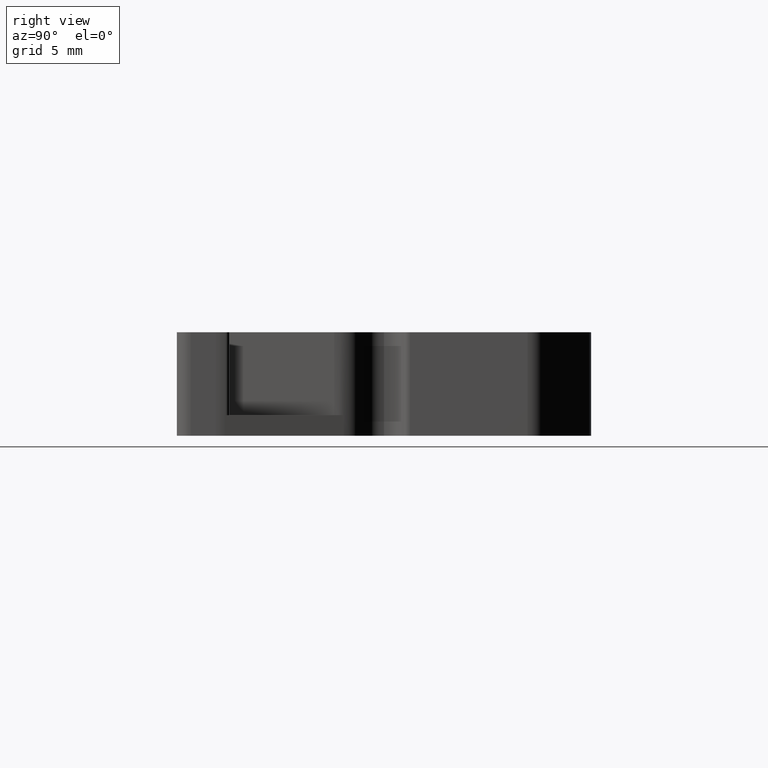
[diagram: clean part render]
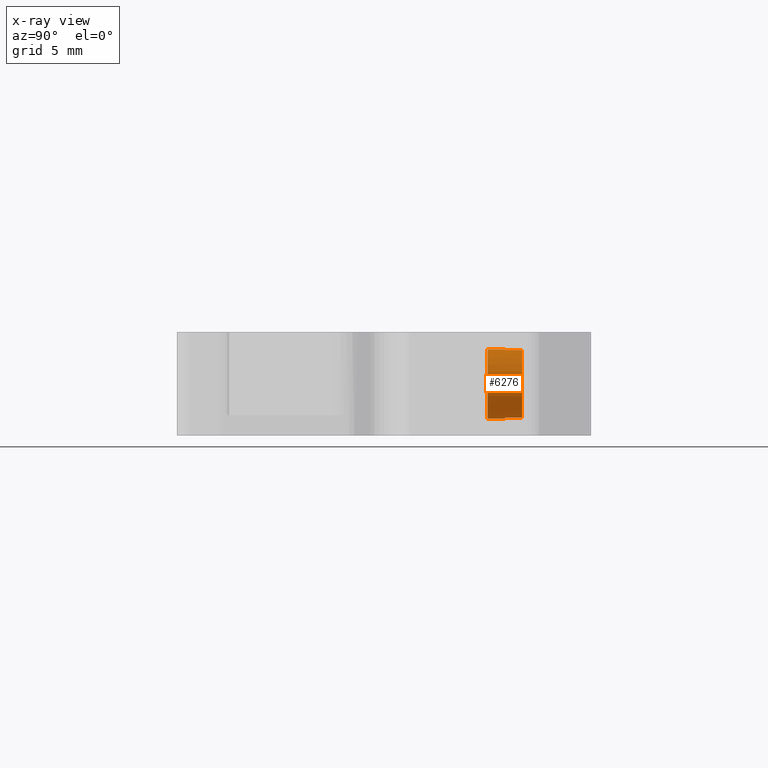
[diagram: x-ray — body ghosted, one internal face saturated and labeled with its STEP entity id]
A machine part, right view, then the same camera in x-ray: the body is ghosted and one INTERNAL B-rep face — a face not visible from any outside direction — is saturated and labeled: STEP entity #6276.
In plain terms, the highlighted cylindrical surface (edge-blend (fillet) strip) has radius 2.5 mm, axis along (-0, -1, -0).
Its self-contained STEP definition (entity closure, byte-faithful):
#83 = EDGE_LOOP ( 'NONE', ( #1193, #1153, #1237, #1200, #1156, #1204, #1145, #1187 ) ) ;
#788 = VERTEX_POINT ( 'NONE', #1314 ) ;
#789 = VERTEX_POINT ( 'NONE', #1349 ) ;
#793 = VERTEX_POINT ( 'NONE', #1322 ) ;
#797 = VERTEX_POINT ( 'NONE', #1350 ) ;
#800 = VERTEX_POINT ( 'NONE', #1338 ) ;
#805 = VERTEX_POINT ( 'NONE', #1329 ) ;
#806 = VERTEX_POINT ( 'NONE', #1356 ) ;
#814 = VERTEX_POINT ( 'NONE', #1359 ) ;
#1145 = ORIENTED_EDGE ( 'NONE', *, *, #3273, .T. ) ;
#1153 = ORIENTED_EDGE ( 'NONE', *, *, #3294, .T. ) ;
#1156 = ORIENTED_EDGE ( 'NONE', *, *, #3284, .F. ) ;
#1187 = ORIENTED_EDGE ( 'NONE', *, *, #3279, .F. ) ;
#1193 = ORIENTED_EDGE ( 'NONE', *, *, #3297, .F. ) ;
#1200 = ORIENTED_EDGE ( 'NONE', *, *, #3288, .F. ) ;
#1204 = ORIENTED_EDGE ( 'NONE', *, *, #3267, .F. ) ;
#1237 = ORIENTED_EDGE ( 'NONE', *, *, #3270, .F. ) ;
#1314 = CARTESIAN_POINT ( 'NONE',  ( 20.92415554633813500, -8.887247075295563900, 6.249999999999959100 ) ) ;
#1322 = CARTESIAN_POINT ( 'NONE',  ( 21.42415554633813500, -8.887247075295563900, 1.300510257216773500 ) ) ;
#1329 = CARTESIAN_POINT ( 'NONE',  ( 20.92415554633813500, -10.13724707529556700, 1.249999999999950700 ) ) ;
#1338 = CARTESIAN_POINT ( 'NONE',  ( 21.42415554633813500, -7.637247075295564800, 6.199489742783136100 ) ) ;
#1349 = CARTESIAN_POINT ( 'NONE',  ( 21.42415554633813500, -8.887247075295563900, 6.199489742783136100 ) ) ;
#1350 = CARTESIAN_POINT ( 'NONE',  ( 20.92415554633813500, -10.13724707529556700, 6.249999999999959100 ) ) ;
#1356 = CARTESIAN_POINT ( 'NONE',  ( 20.92415554633813500, -8.887247075295563900, 1.249999999999950700 ) ) ;
#1359 = CARTESIAN_POINT ( 'NONE',  ( 21.42415554633813500, -7.637247075295564800, 1.300510257216773500 ) ) ;
#2347 = CIRCLE ( 'NONE', #2349, 2.500000000000004000 ) ;
#2349 = AXIS2_PLACEMENT_3D ( 'NONE', #4329, #4306, #4307 ) ;
#2353 = AXIS2_PLACEMENT_3D ( 'NONE', #4292, #4296, #4269 ) ;
#2359 = CIRCLE ( 'NONE', #2353, 2.500000000000004000 ) ;
#2368 = CIRCLE ( 'NONE', #2371, 2.500000000000004000 ) ;
#2371 = AXIS2_PLACEMENT_3D ( 'NONE', #4310, #4336, #4338 ) ;
#2372 = VECTOR ( 'NONE', #4303, 1000.000000000000000 ) ;
#2379 = VECTOR ( 'NONE', #4266, 1000.000000000000000 ) ;
#2422 = VECTOR ( 'NONE', #4369, 1000.000000000000000 ) ;
#2427 = CIRCLE ( 'NONE', #2428, 2.500000000000004000 ) ;
#2428 = AXIS2_PLACEMENT_3D ( 'NONE', #4351, #4372, #4345 ) ;
#2434 = VECTOR ( 'NONE', #4343, 1000.000000000000000 ) ;
#3180 = AXIS2_PLACEMENT_3D ( 'NONE', #5973, #5977, #6009 ) ;
#3267 = EDGE_CURVE ( 'NONE', #814, #793, #4276, .T. ) ;
#3270 = EDGE_CURVE ( 'NONE', #805, #797, #2359, .T. ) ;
#3273 = EDGE_CURVE ( 'NONE', #814, #800, #2347, .T. ) ;
#3279 = EDGE_CURVE ( 'NONE', #789, #800, #4317, .T. ) ;
#3284 = EDGE_CURVE ( 'NONE', #793, #806, #2368, .T. ) ;
#3288 = EDGE_CURVE ( 'NONE', #806, #805, #4297, .T. ) ;
#3294 = EDGE_CURVE ( 'NONE', #788, #797, #4358, .T. ) ;
#3297 = EDGE_CURVE ( 'NONE', #788, #789, #2427, .T. ) ;
#4266 = DIRECTION ( 'NONE',  ( -0.0000000000000000000, -1.000000000000000000, -0.0000000000000000000 ) ) ;
#4269 = DIRECTION ( 'NONE',  ( 0.0000000000000000000, 0.0000000000000000000, -1.000000000000000000 ) ) ;
#4276 = LINE ( 'NONE', #4277, #2379 ) ;
#4277 = CARTESIAN_POINT ( 'NONE',  ( 21.42415554633813500, -23.63724707529556600, 1.300510257216773500 ) ) ;
#4292 = CARTESIAN_POINT ( 'NONE',  ( 20.92415554633813500, -10.13724707529556700, 3.749999999999954700 ) ) ;
#4296 = DIRECTION ( 'NONE',  ( -0.0000000000000000000, -1.000000000000000000, -0.0000000000000000000 ) ) ;
#4297 = LINE ( 'NONE', #4298, #2422 ) ;
#4298 = CARTESIAN_POINT ( 'NONE',  ( 20.92415554633813500, -23.63724707529556600, 1.249999999999950700 ) ) ;
#4303 = DIRECTION ( 'NONE',  ( 0.0000000000000000000, 1.000000000000000000, 0.0000000000000000000 ) ) ;
#4306 = DIRECTION ( 'NONE',  ( -0.0000000000000000000, -1.000000000000000000, -0.0000000000000000000 ) ) ;
#4307 = DIRECTION ( 'NONE',  ( 0.0000000000000000000, 0.0000000000000000000, -1.000000000000000000 ) ) ;
#4310 = CARTESIAN_POINT ( 'NONE',  ( 20.92415554633813500, -8.887247075295563900, 3.749999999999954700 ) ) ;
#4317 = LINE ( 'NONE', #4332, #2372 ) ;
#4329 = CARTESIAN_POINT ( 'NONE',  ( 20.92415554633813500, -7.637247075295564800, 3.749999999999954700 ) ) ;
#4332 = CARTESIAN_POINT ( 'NONE',  ( 21.42415554633813500, -23.63724707529556600, 6.199489742783136100 ) ) ;
#4336 = DIRECTION ( 'NONE',  ( 0.0000000000000000000, 1.000000000000000000, -0.0000000000000000000 ) ) ;
#4338 = DIRECTION ( 'NONE',  ( -5.551115123125774000E-015, 0.0000000000000000000, -1.000000000000000000 ) ) ;
#4343 = DIRECTION ( 'NONE',  ( -0.0000000000000000000, -1.000000000000000000, -0.0000000000000000000 ) ) ;
#4345 = DIRECTION ( 'NONE',  ( 0.0000000000000000000, 0.0000000000000000000, -1.000000000000000000 ) ) ;
#4351 = CARTESIAN_POINT ( 'NONE',  ( 20.92415554633813500, -8.887247075295563900, 3.749999999999954700 ) ) ;
#4358 = LINE ( 'NONE', #4378, #2434 ) ;
#4369 = DIRECTION ( 'NONE',  ( -0.0000000000000000000, -1.000000000000000000, -0.0000000000000000000 ) ) ;
#4372 = DIRECTION ( 'NONE',  ( 0.0000000000000000000, 1.000000000000000000, -0.0000000000000000000 ) ) ;
#4378 = CARTESIAN_POINT ( 'NONE',  ( 20.92415554633813500, -23.63724707529556600, 6.249999999999959100 ) ) ;
#5973 = CARTESIAN_POINT ( 'NONE',  ( 20.92415554633813500, -23.63724707529556600, 3.749999999999954700 ) ) ;
#5977 = DIRECTION ( 'NONE',  ( -0.0000000000000000000, -1.000000000000000000, -0.0000000000000000000 ) ) ;
#5986 = FACE_OUTER_BOUND ( 'NONE', #83, .T. ) ;
#6001 = CYLINDRICAL_SURFACE ( 'NONE', #3180, 2.500000000000004000 ) ;
#6009 = DIRECTION ( 'NONE',  ( 0.0000000000000000000, 0.0000000000000000000, -1.000000000000000000 ) ) ;
#6276 = ADVANCED_FACE ( 'NONE', ( #5986 ), #6001, .T. ) ;